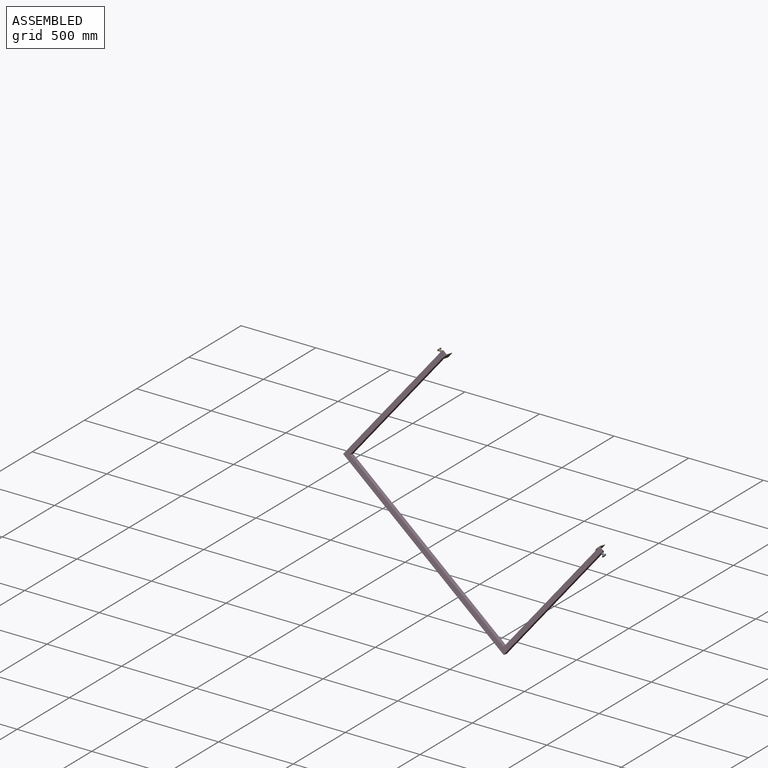
[diagram: assembled view]
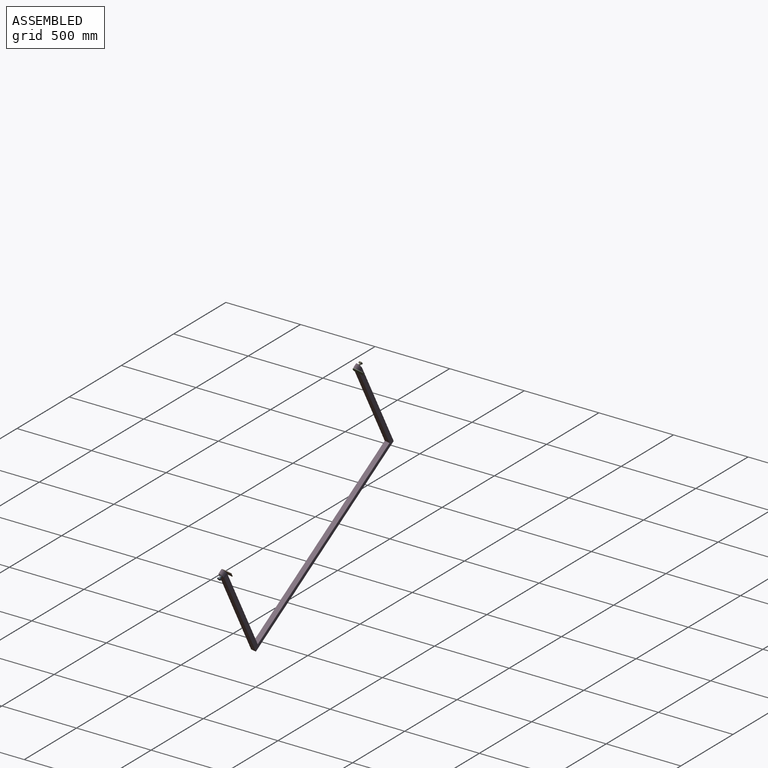
[diagram: assembled view, second angle]
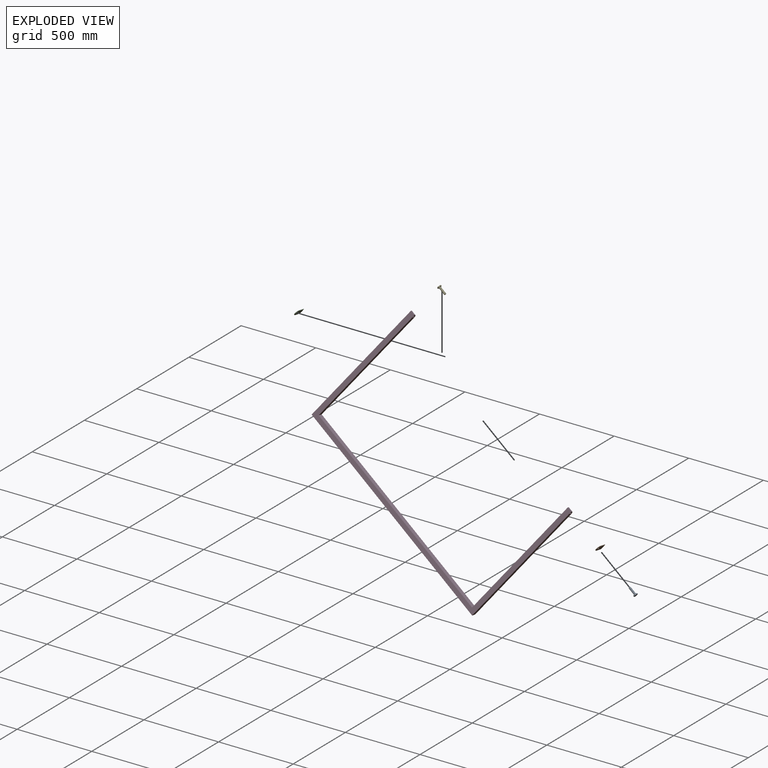
[diagram: exploded view]
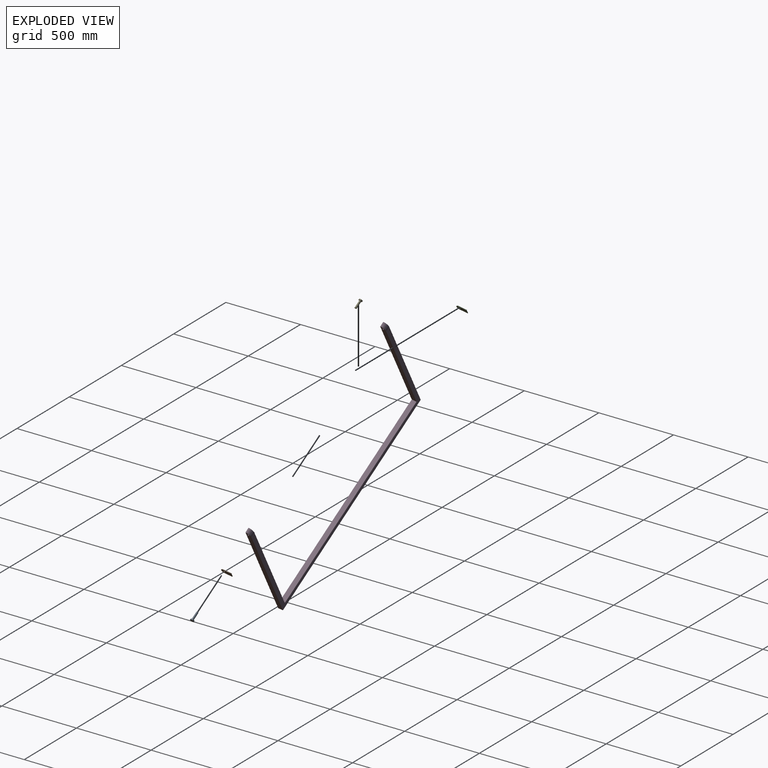
[diagram: exploded view, second angle]
ASSEMBLY  parts=5 mates=3
PART A: 10 faces, bbox 23.2x57.2x26.2 mm
  f0: cylinder r=6.35mm len=50.8mm, axis (0,1,0), area 2026.8mm2, adj f1,f9
  f1: plane 12.7x12.7mm, normal (0,1,0), area 126.7mm2, adj f0
  f2: plane 11.59x6.35mm, normal (0.47,0,-0.88), area 83.4mm2, adj f3,f7,f8,f9
  f3: plane 13.12x6.35mm, normal (1,0,-0.03), area 83.4mm2, adj f2,f4,f8,f9
  f4: plane 11.14x6.95mm, normal (0.53,0,0.85), area 83.4mm2, adj f3,f5,f8,f9
  f5: plane 11.59x6.35mm, normal (-0.47,0,0.88), area 83.4mm2, adj f4,f6,f8,f9
  f6: plane 13.12x6.35mm, normal (-1,0,0.03), area 83.4mm2, adj f5,f7,f8,f9
  f7: plane 11.14x6.95mm, normal (-0.53,0,-0.85), area 83.4mm2, adj f2,f6,f8,f9
  f8: plane 26.24x23.17mm, normal (0,-1,0), area 447.6mm2, adj f2,f3,f4,f5,f6,f7
  f9: plane 26.24x23.17mm, normal (0,1,0), area 321mm2, adj f0,f2,f3,f4,f5,f6,f7
PART B: 7 faces, bbox 38.1x3.2x69.9 mm
  f0: cylinder r=19.05mm len=38.1mm, axis (0,1,0), area 190mm2, adj f1,f4,f5,f6
  f1: plane 50.8x3.18mm, normal (-1,0,0), area 161.3mm2, adj f0,f2,f5,f6
  f2: plane 38.1x3.18mm, normal (0,0,-1), area 121mm2, adj f1,f4,f5,f6
  f3: cylinder r=6.35mm len=12.7mm, axis (0,1,0), area 126.7mm2, adj f5,f6
  f4: plane 50.8x3.18mm, normal (1,0,0), area 161.3mm2, adj f0,f2,f5,f6
  f5: plane 69.85x38.1mm, normal (0,-1,0), area 2378.8mm2, adj f0,f1,f2,f3,f4
  f6: plane 69.85x38.1mm, normal (0,1,0), area 2378.8mm2, adj f0,f1,f2,f3,f4
PART C: same geometry as B
PART D: 12 faces, bbox 1447.8x31.8x914.4 mm
  f0: plane 882.65x31.75mm, normal (1,0,0), area 27684.6mm2, adj f3,f4,f7,f8,f11
  f1: plane 882.65x31.75mm, normal (-1,0,0), area 27684.6mm2, adj f3,f4,f7,f9,f10
  f2: plane 914.4x31.75mm, normal (-1,0,0), area 28692.7mm2, adj f3,f6,f7,f8,f11
  f3: plane 1447.8x886.18mm, normal (0,1,0), area 100223.9mm2, adj f0,f1,f2,f4,f5,f6,f8,f9
  f4: plane 1384.3x31.75mm, normal (0,0,-1), area 43951.5mm2, adj f0,f1,f3,f7
  f5: plane 914.4x31.75mm, normal (1,0,0), area 28692.7mm2, adj f3,f6,f7,f9,f10
  f6: plane 1447.8x31.75mm, normal (0,0,1), area 45967.7mm2, adj f2,f3,f5,f7
  f7: plane 1447.8x914.4mm, normal (0,-1,0), area 102015.9mm2, adj f0,f1,f2,f4,f5,f6,f8,f9
  f8: cylinder r=31.97mm len=31.75mm, axis (1,0,0), area 1475.1mm2, adj f0,f2,f3,f7
  f9: cylinder r=31.97mm len=31.75mm, axis (1,0,0), area 1475.1mm2, adj f1,f3,f5,f7
  f10: cylinder r=6.35mm len=31.75mm, axis (1,0,0), area 1266.8mm2, adj f1,f5
  f11: cylinder r=6.35mm len=31.75mm, axis (1,0,0), area 1266.8mm2, adj f0,f2
PART E: same geometry as A
PLACE A rot(axis=(0.79,-0.36,0.49),93.5deg) t=(194.3,427.35,-1962.22)mm
PLACE B rot(axis=(0.28,0.62,-0.73),137.8deg) t=(196.83,427.1,-1964.12)mm
PLACE C rot(axis=(0.79,-0.36,0.49),93.5deg) t=(-908.15,536.44,-1137.47)mm
PLACE D rot(axis=(-0.01,-0.99,0.1),143deg) t=(-345.08,503.81,-1539.57)mm
PLACE E rot(axis=(0.28,0.62,-0.73),137.8deg) t=(-905.61,536.19,-1139.37)mm
MATE slider E.f0 <-> C.f3  axis (0.8,-0.08,-0.6) through (-905.61,536.19,-1139.37)mm
MATE revolute D.f10 <-> B.f3  axis (-0.8,0.08,0.6) through (196.83,427.1,-1964.12)mm
MATE slider A.f0 <-> B.f3  axis (-0.8,0.08,0.6) through (194.3,427.35,-1962.22)mm
